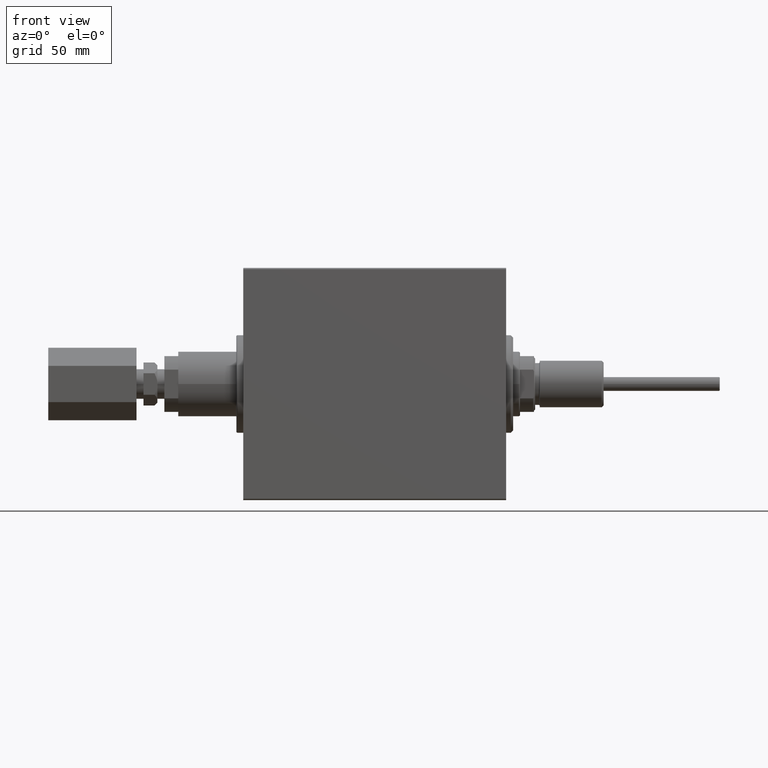
[diagram: clean part render]
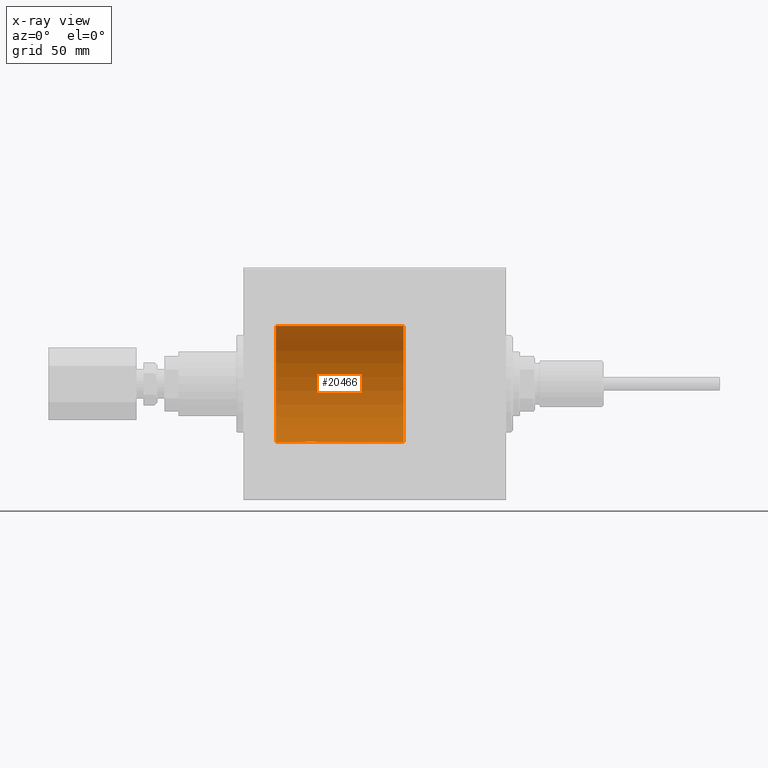
[diagram: x-ray — body ghosted, one internal face saturated and labeled with its STEP entity id]
A machine part, front view, then the same camera in x-ray: the body is ghosted and one INTERNAL B-rep face — a face not visible from any outside direction — is saturated and labeled: STEP entity #20466.
In plain terms, the highlighted cylindrical surface (partial cylindrical patch) has radius 25 mm, axis along (1, 0, -0).
Its self-contained STEP definition (entity closure, byte-faithful):
#1231 = DIRECTION ( 'NONE',  ( -1.000000000000000000, 0.000000000000000000, 0.000000000000000000 ) ) ;
#1381 = VERTEX_POINT ( 'NONE', #34924 ) ;
#1447 = VERTEX_POINT ( 'NONE', #25034 ) ;
#1498 = VECTOR ( 'NONE', #6896, 1000.000000000000000 ) ;
#2003 = CARTESIAN_POINT ( 'NONE',  ( 86.37011290280923959, -1.252049606094342904, -24.96900299967626680 ) ) ;
#2953 = CARTESIAN_POINT ( 'NONE',  ( 81.76650644760252362, -0.6588655613945855194, -24.99312727339970408 ) ) ;
#3498 = LINE ( 'NONE', #29187, #17517 ) ;
#3652 = DIRECTION ( 'NONE',  ( -1.000000000000000000, -0.000000000000000000, -0.000000000000000000 ) ) ;
#5020 = ORIENTED_EDGE ( 'NONE', *, *, #9153, .T. ) ;
#5157 = DIRECTION ( 'NONE',  ( -1.000000000000000000, 0.000000000000000000, 0.000000000000000000 ) ) ;
#5831 = EDGE_CURVE ( 'NONE', #43361, #1381, #3498, .T. ) ;
#6313 = CARTESIAN_POINT ( 'NONE',  ( 84.84904390169097610, -2.419770561643911577, -24.88263927071750814 ) ) ;
#6557 = CARTESIAN_POINT ( 'NONE',  ( 85.00788342405806475, -2.371528299825753638, -24.88734287464370709 ) ) ;
#6896 = DIRECTION ( 'NONE',  ( -1.000000000000000000, -0.000000000000000000, -0.000000000000000000 ) ) ;
#7038 = CARTESIAN_POINT ( 'NONE',  ( 85.45383195424506084, -2.169003991399872433, -24.90589728951139037 ) ) ;
#7067 = CARTESIAN_POINT ( 'NONE',  ( 99.20000000000000284, 0.000000000000000000, 25.00000000000000000 ) ) ;
#7405 = CARTESIAN_POINT ( 'NONE',  ( 99.20000000000000284, 3.061616997868382254E-15, -25.00000000000000000 ) ) ;
#9153 = EDGE_CURVE ( 'NONE', #31327, #1447, #39818, .T. ) ;
#9454 = CARTESIAN_POINT ( 'NONE',  ( 86.08412382786472961, -1.651251241585108387, -24.94567559498348785 ) ) ;
#9543 = CARTESIAN_POINT ( 'NONE',  ( 99.20000000000000284, 3.061616997868382254E-15, -25.00000000000000000 ) ) ;
#10887 = EDGE_LOOP ( 'NONE', ( #26129, #46150, #14623, #5020, #30815, #32868 ) ) ;
#11469 = EDGE_CURVE ( 'NONE', #40060, #35902, #33097, .T. ) ;
#12339 = VECTOR ( 'NONE', #47550, 1000.000000000000000 ) ;
#12515 = B_SPLINE_CURVE_WITH_KNOTS ( 'NONE', 3,
 ( #13296, #31066, #39005, #20253, #34926, #31302, #2003, #45996, #9454, #38775, #46462, #7038, #29118, #6557, #6313, #40200, #21671, #47414, #13999, #28641, #13763, #43582, #28876, #17112, #43100, #25036, #36351, #13529, #32251, #2953, #46938, #21192 ),
 .UNSPECIFIED., .F., .F.,
 ( 4, 2, 2, 2, 2, 2, 2, 2, 2, 2, 2, 2, 2, 2, 2, 4 ),
 ( 0.007821024441662331045, 0.008309723826317937448, 0.008798423210973543851, 0.009287122595629150254, 0.009775821980284756657, 0.01026452136494036306, 0.01075322074959596946, 0.01124192013425157587, 0.01173061951890718227, 0.01221931890356279041, 0.01270801828821839508, 0.01319671767287400321, 0.01368541705752960788, 0.01417411644218521602, 0.01466281582684082069, 0.01564021459615205084 ),
 .UNSPECIFIED. ) ;
#13296 = CARTESIAN_POINT ( 'NONE',  ( 86.70000000000001705, 3.061616978466108082E-15, -25.00000000000000000 ) ) ;
#13529 = CARTESIAN_POINT ( 'NONE',  ( 82.03172358506043338, -1.255214705003178777, -24.96884293994577675 ) ) ;
#13763 = CARTESIAN_POINT ( 'NONE',  ( 83.39564339083698030, -2.372734907014176553, -24.88722742718433523 ) ) ;
#13999 = CARTESIAN_POINT ( 'NONE',  ( 83.87403429960538404, -2.484007091859766092, -24.87630842367763151 ) ) ;
#14623 = ORIENTED_EDGE ( 'NONE', *, *, #35874, .T. ) ;
#15277 = DIRECTION ( 'NONE',  ( 0.000000000000000000, 0.000000000000000000, 1.000000000000000000 ) ) ;
#17112 = CARTESIAN_POINT ( 'NONE',  ( 82.67743225659813788, -1.989585286700249700, -24.92087098724766747 ) ) ;
#17517 = VECTOR ( 'NONE', #42939, 1000.000000000000000 ) ;
#17864 = CARTESIAN_POINT ( 'NONE',  ( 81.70000000000000284, -1.201333969079745055E-15, -25.00000000000000000 ) ) ;
#19738 = EDGE_CURVE ( 'NONE', #1447, #1381, #34734, .T. ) ;
#20253 = CARTESIAN_POINT ( 'NONE',  ( 86.62014909220928871, -0.6480119923854242847, -24.99212088949390420 ) ) ;
#20466 = ADVANCED_FACE ( 'NONE', ( #47172 ), #32724, .F. ) ;
#21192 = CARTESIAN_POINT ( 'NONE',  ( 81.70000000000000284, -1.201333969079745055E-15, -25.00000000000000000 ) ) ;
#21671 = CARTESIAN_POINT ( 'NONE',  ( 84.36706495178061971, -2.499872792855085013, -24.87469871246082320 ) ) ;
#21732 = AXIS2_PLACEMENT_3D ( 'NONE', #38080, #5157, #15277 ) ;
#23983 = AXIS2_PLACEMENT_3D ( 'NONE', #40194, #3652, #43332 ) ;
#25034 = CARTESIAN_POINT ( 'NONE',  ( 44.20000000000000284, 3.061616997868382254E-15, -25.00000000000000000 ) ) ;
#25036 = CARTESIAN_POINT ( 'NONE',  ( 82.31814045851356809, -1.653834020452939813, -24.94550385189584318 ) ) ;
#26129 = ORIENTED_EDGE ( 'NONE', *, *, #32601, .F. ) ;
#26914 = DIRECTION ( 'NONE',  ( 0.000000000000000000, 0.000000000000000000, 1.000000000000000000 ) ) ;
#28641 = CARTESIAN_POINT ( 'NONE',  ( 83.55439333851366257, -2.420689345803760162, -24.88254961038873958 ) ) ;
#28876 = CARTESIAN_POINT ( 'NONE',  ( 82.94915976075945707, -2.170728182476723944, -24.90574631553725027 ) ) ;
#29118 = CARTESIAN_POINT ( 'NONE',  ( 85.31036796508865905, -2.245863995402905378, -24.89899750494197050 ) ) ;
#29187 = CARTESIAN_POINT ( 'NONE',  ( 99.20000000000000284, 0.000000000000000000, 25.00000000000000000 ) ) ;
#30815 = ORIENTED_EDGE ( 'NONE', *, *, #19738, .T. ) ;
#31006 = CARTESIAN_POINT ( 'NONE',  ( 44.20000000000000284, 0.000000000000000000, 0.000000000000000000 ) ) ;
#31066 = CARTESIAN_POINT ( 'NONE',  ( 86.70000000000003126, -0.1631750940176197595, -25.00000000000000711 ) ) ;
#31302 = CARTESIAN_POINT ( 'NONE',  ( 86.44760251019550878, -1.106703319666885177, -24.97594585958023572 ) ) ;
#31327 = VERTEX_POINT ( 'NONE', #17864 ) ;
#32251 = CARTESIAN_POINT ( 'NONE',  ( 81.95393620905933574, -1.109818057797415047, -24.97580694515541921 ) ) ;
#32601 = EDGE_CURVE ( 'NONE', #40060, #43361, #39382, .T. ) ;
#32724 = CYLINDRICAL_SURFACE ( 'NONE', #23983, 25.00000000000000000 ) ;
#32868 = ORIENTED_EDGE ( 'NONE', *, *, #5831, .F. ) ;
#33097 = LINE ( 'NONE', #7405, #12339 ) ;
#34695 = CARTESIAN_POINT ( 'NONE',  ( 99.20000000000000284, 3.061616997868382254E-15, -25.00000000000000000 ) ) ;
#34734 = CIRCLE ( 'NONE', #45519, 25.00000000000000000 ) ;
#34924 = CARTESIAN_POINT ( 'NONE',  ( 44.20000000000000284, 0.000000000000000000, 25.00000000000000000 ) ) ;
#34926 = CARTESIAN_POINT ( 'NONE',  ( 86.57215969408609624, -0.8058335233485469651, -24.98746277938382931 ) ) ;
#35874 = EDGE_CURVE ( 'NONE', #35902, #31327, #12515, .T. ) ;
#35902 = VERTEX_POINT ( 'NONE', #41788 ) ;
#36351 = CARTESIAN_POINT ( 'NONE',  ( 82.21461966282905109, -1.528152964861309027, -24.95362559291378091 ) ) ;
#38080 = CARTESIAN_POINT ( 'NONE',  ( 99.20000000000000284, 0.000000000000000000, 0.000000000000000000 ) ) ;
#38775 = CARTESIAN_POINT ( 'NONE',  ( 85.85383336149338618, -1.881857718844722749, -24.92933960374834257 ) ) ;
#39005 = CARTESIAN_POINT ( 'NONE',  ( 86.68417840057657031, -0.3254210271412229516, -24.99840249400844172 ) ) ;
#39382 = CIRCLE ( 'NONE', #21732, 25.00000000000000000 ) ;
#39818 = LINE ( 'NONE', #9543, #1498 ) ;
#40060 = VERTEX_POINT ( 'NONE', #34695 ) ;
#40194 = CARTESIAN_POINT ( 'NONE',  ( 99.20000000000000284, 0.000000000000000000, 0.000000000000000000 ) ) ;
#40200 = CARTESIAN_POINT ( 'NONE',  ( 84.52947680114270668, -2.483544361357273189, -24.87635491893501793 ) ) ;
#41788 = CARTESIAN_POINT ( 'NONE',  ( 86.70000000000001705, 3.061616978466108082E-15, -25.00000000000000000 ) ) ;
#42939 = DIRECTION ( 'NONE',  ( -1.000000000000000000, -0.000000000000000000, -0.000000000000000000 ) ) ;
#43100 = CARTESIAN_POINT ( 'NONE',  ( 82.54878866440891727, -1.884161199660619790, -24.92916496727982789 ) ) ;
#43332 = DIRECTION ( 'NONE',  ( 0.000000000000000000, 0.000000000000000000, 1.000000000000000000 ) ) ;
#43361 = VERTEX_POINT ( 'NONE', #7067 ) ;
#43582 = CARTESIAN_POINT ( 'NONE',  ( 83.09276154161591421, -2.247417070759899715, -24.89885693081946272 ) ) ;
#45519 = AXIS2_PLACEMENT_3D ( 'NONE', #31006, #1231, #26914 ) ;
#45996 = CARTESIAN_POINT ( 'NONE',  ( 86.18749815834401318, -1.525407911884371082, -24.95379469572363007 ) ) ;
#46150 = ORIENTED_EDGE ( 'NONE', *, *, #11469, .T. ) ;
#46462 = CARTESIAN_POINT ( 'NONE',  ( 85.72536182243082692, -1.987446652080262943, -24.92104239223420592 ) ) ;
#46938 = CARTESIAN_POINT ( 'NONE',  ( 81.70000000000000284, -0.3305063766663747793, -25.00000000000000711 ) ) ;
#47172 = FACE_OUTER_BOUND ( 'NONE', #10887, .T. ) ;
#47414 = CARTESIAN_POINT ( 'NONE',  ( 84.03676410361458693, -2.500125740978197175, -24.87467329022545570 ) ) ;
#47550 = DIRECTION ( 'NONE',  ( -1.000000000000000000, -0.000000000000000000, -0.000000000000000000 ) ) ;